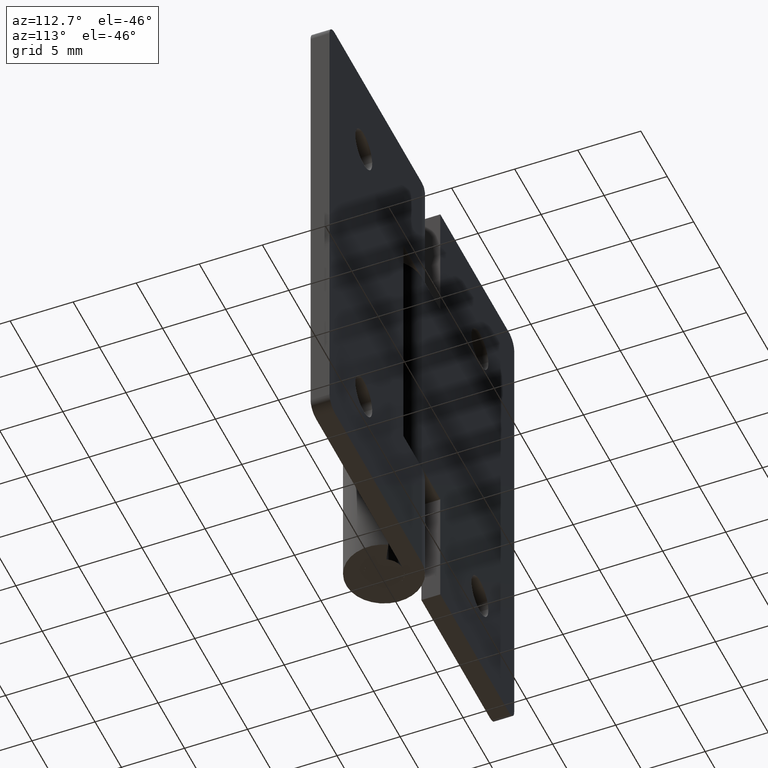
[diagram: clean part render]
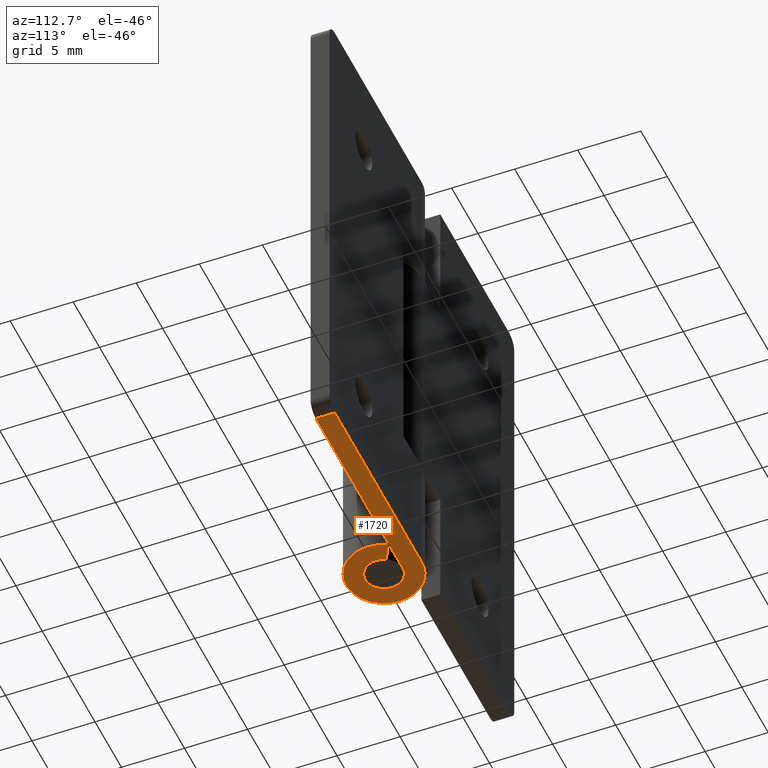
[diagram: same view with one face highlighted and labeled with its STEP entity id]
A machine part, auxiliary view. The second image highlights one B-rep face of the part: STEP entity #1720.
In plain terms, the highlighted face is a freeform B-spline surface patch.
Its self-contained STEP definition (entity closure, byte-faithful):
#1430=CARTESIAN_POINT('',(16.500000000000000,3.0,0.0));
#1431=VERTEX_POINT('',#1430);
#1452=CARTESIAN_POINT('',(16.500000000000000,1.500000000000000,0.0));
#1453=VERTEX_POINT('',#1452);
#1467=CARTESIAN_POINT('',(16.500000000000000,3.0,0.0));
#1468=CARTESIAN_POINT('',(16.500000000000000,1.500000000000000,0.0));
#1469=QUASI_UNIFORM_CURVE('',1,(#1467,#1468),.UNSPECIFIED.,.F.,.U.);
#1470=EDGE_CURVE('',#1431,#1453,#1469,.T.);
#1651=CARTESIAN_POINT('',(-3.973972965077522,-3.299492253231700,0.0));
#1652=CARTESIAN_POINT('',(17.474023011539298,-3.299492253231700,0.0));
#1653=CARTESIAN_POINT('',(-3.973972965077522,3.299690266570495,0.0));
#1654=CARTESIAN_POINT('',(17.474023011539298,3.299690266570495,0.0));
#1655=B_SPLINE_SURFACE_WITH_KNOTS('',1,1,((#1651,#1653),(#1652,#1654)),.UNSPECIFIED.,.F.,.F.,.U.,(2,2),(2,2),(0.0,21.447995976616820),(0.0,6.599182519802195),.UNSPECIFIED.);
#1656=CARTESIAN_POINT('',(-5.510729E-016,3.0,0.0));
#1657=VERTEX_POINT('',#1656);
#1658=CARTESIAN_POINT('',(-5.510729E-016,3.0,0.0));
#1659=CARTESIAN_POINT('',(16.500000000000000,3.0,0.0));
#1660=QUASI_UNIFORM_CURVE('',1,(#1658,#1659),.UNSPECIFIED.,.F.,.U.);
#1661=EDGE_CURVE('',#1657,#1431,#1660,.T.);
#1662=ORIENTED_EDGE('',*,*,#1661,.T.);
#1663=ORIENTED_EDGE('',*,*,#1470,.T.);
#1664=CARTESIAN_POINT('',(0.0,1.500000000000000,0.0));
#1665=VERTEX_POINT('',#1664);
#1666=CARTESIAN_POINT('',(16.500000000000000,1.500000000000000,0.0));
#1667=CARTESIAN_POINT('',(0.0,1.500000000000000,0.0));
#1668=QUASI_UNIFORM_CURVE('',1,(#1666,#1667),.UNSPECIFIED.,.F.,.U.);
#1669=EDGE_CURVE('',#1453,#1665,#1668,.T.);
#1670=ORIENTED_EDGE('',*,*,#1669,.T.);
#1671=CARTESIAN_POINT('',(1.313154598666890,0.725000000000000,0.0));
#1672=VERTEX_POINT('',#1671);
#1673=CARTESIAN_POINT('',(1.313154598666890,0.725000000000000,0.0));
#1674=CARTESIAN_POINT('',(1.866715792252885,-0.277636451035838,0.0));
#1675=CARTESIAN_POINT('',(1.045325295443045,-1.075776476182162,0.0));
#1676=CARTESIAN_POINT('',(0.223934798633207,-1.873916501328486,0.0));
#1677=CARTESIAN_POINT('',(-0.762397534098844,-1.291801068276382,0.0));
#1678=CARTESIAN_POINT('',(-1.748729866830896,-0.709685635224277,0.0));
#1679=CARTESIAN_POINT('',(-1.447014444021651,0.395157182387861,0.0));
#1680=CARTESIAN_POINT('',(-1.145299021212405,1.500000000000000,0.0));
#1681=CARTESIAN_POINT('',(0.0,1.500000000000000,0.0));
#1689=(BOUNDED_CURVE()B_SPLINE_CURVE(2,(#1673,#1674,#1675,#1676,#1677,#1678,#1679,#1680,#1681),.UNSPECIFIED.,.F.,.U.)B_SPLINE_CURVE_WITH_KNOTS((3,2,2,2,3),(0.0,0.250000000000000,0.500000000000000,0.750000000000000,1.0),.UNSPECIFIED.)CURVE()GEOMETRIC_REPRESENTATION_ITEM()RATIONAL_B_SPLINE_CURVE((1.0,0.794807562115481,1.0,0.794807562115481,1.0,0.794807562115481,1.0,0.794807562115481,1.0))REPRESENTATION_ITEM(''));
#1690=EDGE_CURVE('',#1672,#1665,#1689,.T.);
#1691=ORIENTED_EDGE('',*,*,#1690,.F.);
#1692=CARTESIAN_POINT('',(2.626309197333780,1.450000000000000,0.0));
#1693=VERTEX_POINT('',#1692);
#1694=CARTESIAN_POINT('',(1.313154598666890,0.725000000000000,0.0));
#1695=CARTESIAN_POINT('',(2.626309197333780,1.450000000000000,0.0));
#1696=QUASI_UNIFORM_CURVE('',1,(#1694,#1695),.UNSPECIFIED.,.F.,.U.);
#1697=EDGE_CURVE('',#1672,#1693,#1696,.T.);
#1698=ORIENTED_EDGE('',*,*,#1697,.T.);
#1699=CARTESIAN_POINT('',(2.626309197333780,1.450000000000000,0.0));
#1700=CARTESIAN_POINT('',(3.733431584505770,-0.555272902071675,0.0));
#1701=CARTESIAN_POINT('',(2.090650590886091,-2.151552952364324,0.0));
#1702=CARTESIAN_POINT('',(0.447869597266413,-3.747833002656972,0.0));
#1703=CARTESIAN_POINT('',(-1.524795068197689,-2.583602136552764,0.0));
#1704=CARTESIAN_POINT('',(-3.497459733661792,-1.419371270448555,0.0));
#1705=CARTESIAN_POINT('',(-2.894028888043301,0.790314364775722,0.0));
#1706=CARTESIAN_POINT('',(-2.290598042424809,3.000000000000000,0.0));
#1707=CARTESIAN_POINT('',(0.0,3.0,0.0));
#1715=(BOUNDED_CURVE()B_SPLINE_CURVE(2,(#1699,#1700,#1701,#1702,#1703,#1704,#1705,#1706,#1707),.UNSPECIFIED.,.F.,.U.)B_SPLINE_CURVE_WITH_KNOTS((3,2,2,2,3),(0.0,0.250000000000000,0.500000000000000,0.750000000000000,1.0),.UNSPECIFIED.)CURVE()GEOMETRIC_REPRESENTATION_ITEM()RATIONAL_B_SPLINE_CURVE((1.0,0.794807562115481,1.0,0.794807562115481,1.0,0.794807562115481,1.0,0.794807562115481,1.0))REPRESENTATION_ITEM(''));
#1716=EDGE_CURVE('',#1693,#1657,#1715,.T.);
#1717=ORIENTED_EDGE('',*,*,#1716,.T.);
#1718=EDGE_LOOP('',(#1662,#1663,#1670,#1691,#1698,#1717));
#1719=FACE_OUTER_BOUND('',#1718,.T.);
#1720=ADVANCED_FACE('',(#1719),#1655,.F.);